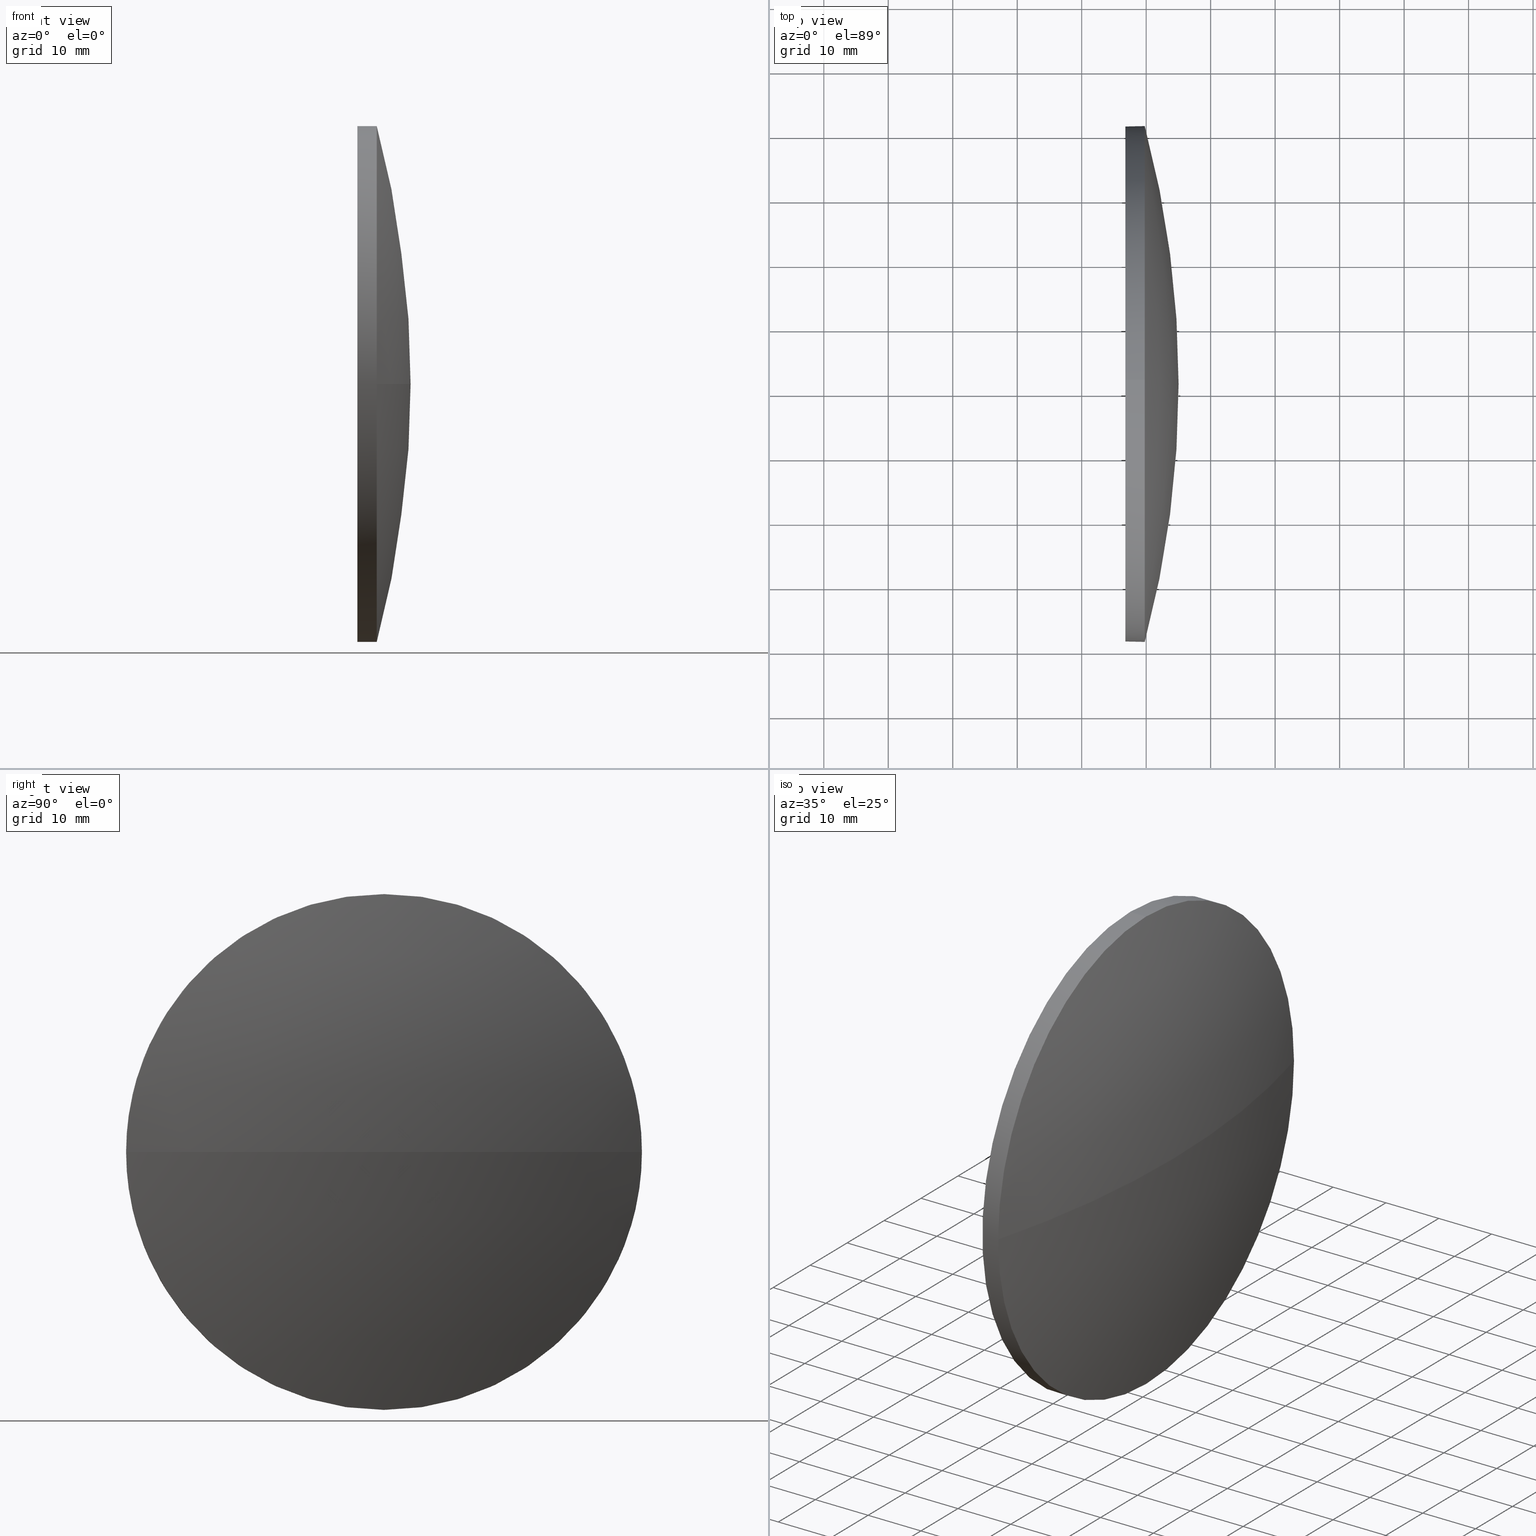
[diagram: canonical four-view strip — front | top / right | iso, engineering-drawing reading convention]
A machine part, canonical four-view strip (front | top / right | iso — engineering-drawing reading convention). The complete STEP part file that produces these views, byte-faithful:
ISO-10303-21;
HEADER;
FILE_DESCRIPTION (( 'STEP AP214' ),
    '1' );
FILE_NAME ('100079.STEP',
    '2019-05-10T02:18:41',
    ( '' ),
    ( '' ),
    'SwSTEP 2.0',
    'SolidWorks 2016',
    '' );
FILE_SCHEMA (( 'AUTOMOTIVE_DESIGN' ));
ENDSEC;

DATA;
#1 = CARTESIAN_POINT ( 'NONE',  ( 786.7768331134177500, 121.1916296255188900, 0.0000000000000000000 ) ) ;
#2 = DIRECTION ( 'NONE',  ( 0.0000000000000000000, 0.0000000000000000000, 1.000000000000000000 ) ) ;
#3 = DIRECTION ( 'NONE',  ( 0.0000000000000000000, 0.0000000000000000000, -1.000000000000000000 ) ) ;
#4 = DIRECTION ( 'NONE',  ( -1.000000000000000000, -0.0000000000000000000, -0.0000000000000000000 ) ) ;
#5 = UNCERTAINTY_MEASURE_WITH_UNIT (LENGTH_MEASURE( 1.000000000000000100E-005 ), #62, 'distance_accuracy_value', 'NONE');
#6 =( NAMED_UNIT ( * ) SI_UNIT ( $, .STERADIAN. ) SOLID_ANGLE_UNIT ( ) );
#7 = DIRECTION ( 'NONE',  ( -1.000000000000000000, -0.0000000000000000000, -0.0000000000000000000 ) ) ;
#8 = SURFACE_SIDE_STYLE ('',( #97 ) ) ;
#9 = EDGE_LOOP ( 'NONE', ( #90, #110, #78, #120 ) ) ;
#10 = DIRECTION ( 'NONE',  ( 0.0000000000000000000, 0.0000000000000000000, -1.000000000000000000 ) ) ;
#11 = PRESENTATION_LAYER_ASSIGNMENT (  '', '', ( #176 ) ) ;
#12 =( LENGTH_UNIT ( ) NAMED_UNIT ( * ) SI_UNIT ( .MILLI., .METRE. ) );
#13 = MECHANICAL_DESIGN_GEOMETRIC_PRESENTATION_REPRESENTATION (  '', ( #176 ), #145 ) ;
#14 = PRODUCT_RELATED_PRODUCT_CATEGORY ( 'part', '', ( #96 ) ) ;
#15 = MECHANICAL_DESIGN_GEOMETRIC_PRESENTATION_REPRESENTATION (  '', ( #69 ), #100 ) ;
#16 = DIRECTION ( 'NONE',  ( -1.000000000000000000, -0.0000000000000000000, -0.0000000000000000000 ) ) ;
#17 = VERTEX_POINT ( 'NONE', #174 ) ;
#18 = SURFACE_STYLE_FILL_AREA ( #148 ) ;
#19 = CARTESIAN_POINT ( 'NONE',  ( 767.9518554358446600, 121.1916296255188900, 0.0000000000000000000 ) ) ;
#20 = VERTEX_POINT ( 'NONE', #88 ) ;
#21 = DIRECTION ( 'NONE',  ( 0.0000000000000000000, 0.0000000000000000000, 1.000000000000000000 ) ) ;
#22 = APPLICATION_CONTEXT ( 'automotive_design' ) ;
#23 = ADVANCED_FACE ( 'NONE', ( #26 ), #167, .T. ) ;
#24 = EDGE_CURVE ( 'NONE', #66, #20, #53, .T. ) ;
#25 = PRODUCT_CONTEXT ( 'NONE', #136, 'mechanical' ) ;
#26 = FACE_OUTER_BOUND ( 'NONE', #158, .T. ) ;
#27 = PRESENTATION_STYLE_ASSIGNMENT (( #147 ) ) ;
#28 = ORIENTED_EDGE ( 'NONE', *, *, #159, .T. ) ;
#29 = EDGE_CURVE ( 'NONE', #35, #66, #163, .T. ) ;
#30 = CIRCLE ( 'NONE', #183, 155.0007543462769200 ) ;
#31 = ORIENTED_EDGE ( 'NONE', *, *, #32, .T. ) ;
#32 = EDGE_CURVE ( 'NONE', #116, #20, #99, .T. ) ;
#33 = DIRECTION ( 'NONE',  ( -1.000000000000000000, -0.0000000000000000000, -0.0000000000000000000 ) ) ;
#34 = DIRECTION ( 'NONE',  ( 0.0000000000000000000, 0.0000000000000000000, 1.000000000000000000 ) ) ;
#35 = VERTEX_POINT ( 'NONE', #143 ) ;
#36 = UNCERTAINTY_MEASURE_WITH_UNIT (LENGTH_MEASURE( 1.000000000000000100E-005 ), #12, 'distance_accuracy_value', 'NONE');
#37 = AXIS2_PLACEMENT_3D ( 'NONE', #65, #48, #51 ) ;
#38 = ORIENTED_EDGE ( 'NONE', *, *, #166, .T. ) ;
#39 = AXIS2_PLACEMENT_3D ( 'NONE', #19, #4, #144 ) ;
#40 = EDGE_LOOP ( 'NONE', ( #170, #101, #152, #45, #118 ) ) ;
#41 = FACE_OUTER_BOUND ( 'NONE', #9, .T. ) ;
#42 = SURFACE_SIDE_STYLE ('',( #18 ) ) ;
#43 = DIRECTION ( 'NONE',  ( 0.0000000000000000000, 0.0000000000000000000, 1.000000000000000000 ) ) ;
#44 = DIRECTION ( 'NONE',  ( -1.000000000000000000, -0.0000000000000000000, -0.0000000000000000000 ) ) ;
#45 = ORIENTED_EDGE ( 'NONE', *, *, #24, .T. ) ;
#46 = DIRECTION ( 'NONE',  ( 0.0000000000000000000, 0.0000000000000000000, 1.000000000000000000 ) ) ;
#47 = AXIS2_PLACEMENT_3D ( 'NONE', #117, #10, #108 ) ;
#48 = DIRECTION ( 'NONE',  ( 0.0000000000000000000, 0.0000000000000000000, 1.000000000000000000 ) ) ;
#49 = ADVANCED_FACE ( 'NONE', ( #126 ), #58, .F. ) ;
#50 = AXIS2_PLACEMENT_3D ( 'NONE', #173, #87, #3 ) ;
#51 = DIRECTION ( 'NONE',  ( 1.000000000000000000, 0.0000000000000000000, 0.0000000000000000000 ) ) ;
#52 = PRESENTATION_STYLE_ASSIGNMENT (( #132 ) ) ;
#53 = LINE ( 'NONE', #128, #137 ) ;
#54 = FACE_OUTER_BOUND ( 'NONE', #142, .T. ) ;
#55 = AXIS2_PLACEMENT_3D ( 'NONE', #135, #133, #34 ) ;
#56 = CARTESIAN_POINT ( 'NONE',  ( 789.7768331134177500, 121.1916296255188900, 0.0000000000000000000 ) ) ;
#57 = VERTEX_POINT ( 'NONE', #127 ) ;
#58 = PLANE ( 'NONE',  #50 ) ;
#59 = DIRECTION ( 'NONE',  ( 0.0000000000000000000, 0.0000000000000000000, 1.000000000000000000 ) ) ;
#60 = DIRECTION ( 'NONE',  ( 0.0000000000000000000, -1.224646799147353200E-016, 1.000000000000000000 ) ) ;
#61 = CARTESIAN_POINT ( 'NONE',  ( 786.7768331134177500, 121.1916296255188900, -40.00000000000000700 ) ) ;
#62 =( LENGTH_UNIT ( ) NAMED_UNIT ( * ) SI_UNIT ( .MILLI., .METRE. ) );
#63 =( NAMED_UNIT ( * ) SI_UNIT ( $, .STERADIAN. ) SOLID_ANGLE_UNIT ( ) );
#64 =( NAMED_UNIT ( * ) PLANE_ANGLE_UNIT ( ) SI_UNIT ( $, .RADIAN. ) );
#65 = CARTESIAN_POINT ( 'NONE',  ( 0.0000000000000000000, 0.0000000000000000000, 0.0000000000000000000 ) ) ;
#66 = VERTEX_POINT ( 'NONE', #162 ) ;
#67 = COLOUR_RGB ( '',1.000000000000000000, 1.000000000000000000, 1.000000000000000000 ) ;
#68 = CLOSED_SHELL ( 'NONE', ( #23, #79, #71, #129, #49 ) ) ;
#69 = STYLED_ITEM ( 'NONE', ( #52 ), #70 ) ;
#70 = MANIFOLD_SOLID_BREP ( '��ת1', #68 ) ;
#71 = ADVANCED_FACE ( 'NONE', ( #41 ), #95, .T. ) ;
#72 = SHAPE_DEFINITION_REPRESENTATION ( #154, #185 ) ;
#73 = CARTESIAN_POINT ( 'NONE',  ( 789.7768331134177500, 121.1916296255188900, 0.0000000000000000000 ) ) ;
#74 = UNCERTAINTY_MEASURE_WITH_UNIT (LENGTH_MEASURE( 1.000000000000000100E-005 ), #175, 'distance_accuracy_value', 'NONE');
#75 = CARTESIAN_POINT ( 'NONE',  ( 640.0262610012722500, 121.1916296255189100, 0.0000000000000000000 ) ) ;
#76 = DIRECTION ( 'NONE',  ( -1.000000000000000000, -0.0000000000000000000, -0.0000000000000000000 ) ) ;
#77 = DIRECTION ( 'NONE',  ( 0.0000000000000000000, -1.000000000000000000, 0.0000000000000000000 ) ) ;
#78 = ORIENTED_EDGE ( 'NONE', *, *, #155, .F. ) ;
#79 = ADVANCED_FACE ( 'NONE', ( #54 ), #184, .T. ) ;
#80 = CARTESIAN_POINT ( 'NONE',  ( 767.9518554358446600, 121.1916296255188900, -40.00000000000000700 ) ) ;
#81 = PRESENTATION_LAYER_ASSIGNMENT (  '', '', ( #69 ) ) ;
#82 = VECTOR ( 'NONE', #89, 1000.000000000000000 ) ;
#83 =( GEOMETRIC_REPRESENTATION_CONTEXT ( 3 ) GLOBAL_UNCERTAINTY_ASSIGNED_CONTEXT ( ( #5 ) ) GLOBAL_UNIT_ASSIGNED_CONTEXT ( ( #62, #177, #92 ) ) REPRESENTATION_CONTEXT ( 'NONE', 'WORKASPACE' ) );
#84 = PRODUCT_DEFINITION_CONTEXT ( 'detailed design', #22, 'design' ) ;
#85 = ORIENTED_EDGE ( 'NONE', *, *, #24, .F. ) ;
#86 = DIRECTION ( 'NONE',  ( 0.0000000000000000000, 0.0000000000000000000, 1.000000000000000000 ) ) ;
#87 = DIRECTION ( 'NONE',  ( 1.000000000000000000, 0.0000000000000000000, 0.0000000000000000000 ) ) ;
#88 = CARTESIAN_POINT ( 'NONE',  ( 786.7768331134177500, 121.1916296255188900, 40.00000000000000700 ) ) ;
#89 = DIRECTION ( 'NONE',  ( -1.000000000000000000, -0.0000000000000000000, -0.0000000000000000000 ) ) ;
#90 = ORIENTED_EDGE ( 'NONE', *, *, #121, .F. ) ;
#91 =( NAMED_UNIT ( * ) PLANE_ANGLE_UNIT ( ) SI_UNIT ( $, .RADIAN. ) );
#92 =( NAMED_UNIT ( * ) SI_UNIT ( $, .STERADIAN. ) SOLID_ANGLE_UNIT ( ) );
#93 = CARTESIAN_POINT ( 'NONE',  ( 789.7768331134177500, 121.1916296255188900, 0.0000000000000000000 ) ) ;
#94 = PRODUCT_DEFINITION_FORMATION_WITH_SPECIFIED_SOURCE ( '�κ�', '', #96, .NOT_KNOWN. ) ;
#95 = SPHERICAL_SURFACE ( 'NONE', #164, 155.0007543462769200 ) ;
#96 = PRODUCT ( '100079', '100079', '', ( #25 ) ) ;
#97 = SURFACE_STYLE_FILL_AREA ( #107 ) ;
#98 = CYLINDRICAL_SURFACE ( 'NONE', #114, 40.00000000000000700 ) ;
#99 = CIRCLE ( 'NONE', #182, 40.00000000000000700 ) ;
#100 =( GEOMETRIC_REPRESENTATION_CONTEXT ( 3 ) GLOBAL_UNCERTAINTY_ASSIGNED_CONTEXT ( ( #74 ) ) GLOBAL_UNIT_ASSIGNED_CONTEXT ( ( #175, #91, #63 ) ) REPRESENTATION_CONTEXT ( 'NONE', 'WORKASPACE' ) );
#101 = ORIENTED_EDGE ( 'NONE', *, *, #155, .T. ) ;
#102 = CARTESIAN_POINT ( 'NONE',  ( 640.0262610012722500, 121.1916296255189100, 0.0000000000000000000 ) ) ;
#103 = CIRCLE ( 'NONE', #55, 40.00000000000000700 ) ;
#104 = FILL_AREA_STYLE_COLOUR ( '', #67 ) ;
#105 = CARTESIAN_POINT ( 'NONE',  ( 789.7768331134177500, 121.1916296255188900, -40.00000000000000700 ) ) ;
#106 = CIRCLE ( 'NONE', #112, 40.00000000000000700 ) ;
#107 = FILL_AREA_STYLE ('',( #160 ) ) ;
#108 = DIRECTION ( 'NONE',  ( -1.000000000000000000, 0.0000000000000000000, 0.0000000000000000000 ) ) ;
#109 = DIRECTION ( 'NONE',  ( 0.0000000000000000000, 0.0000000000000000000, 1.000000000000000000 ) ) ;
#110 = ORIENTED_EDGE ( 'NONE', *, *, #169, .T. ) ;
#111 = DIRECTION ( 'NONE',  ( 0.0000000000000000000, -1.000000000000000000, -1.224646799147353200E-016 ) ) ;
#112 = AXIS2_PLACEMENT_3D ( 'NONE', #130, #33, #21 ) ;
#113 = CIRCLE ( 'NONE', #139, 40.00000000000000700 ) ;
#114 = AXIS2_PLACEMENT_3D ( 'NONE', #161, #44, #59 ) ;
#115 = EDGE_CURVE ( 'NONE', #20, #116, #106, .T. ) ;
#116 = VERTEX_POINT ( 'NONE', #61 ) ;
#117 = CARTESIAN_POINT ( 'NONE',  ( 640.0262610012722500, 121.1916296255189100, 0.0000000000000000000 ) ) ;
#118 = ORIENTED_EDGE ( 'NONE', *, *, #32, .F. ) ;
#119 = APPLICATION_PROTOCOL_DEFINITION ( 'draft international standard', 'automotive_design', 1998, #22 ) ;
#120 = ORIENTED_EDGE ( 'NONE', *, *, #179, .F. ) ;
#121 = EDGE_CURVE ( 'NONE', #17, #57, #30, .T. ) ;
#122 = ORIENTED_EDGE ( 'NONE', *, *, #166, .F. ) ;
#123 = COLOUR_RGB ( '',1.000000000000000000, 1.000000000000000000, 1.000000000000000000 ) ;
#124 = ORIENTED_EDGE ( 'NONE', *, *, #115, .F. ) ;
#125 = CIRCLE ( 'NONE', #157, 40.00000000000000700 ) ;
#126 = FACE_OUTER_BOUND ( 'NONE', #140, .T. ) ;
#127 = CARTESIAN_POINT ( 'NONE',  ( 789.7768331134177500, 161.1916296255188600, 4.898587196589406700E-015 ) ) ;
#128 = CARTESIAN_POINT ( 'NONE',  ( 767.9518554358446600, 121.1916296255188900, 40.00000000000000700 ) ) ;
#129 = ADVANCED_FACE ( 'NONE', ( #168 ), #98, .T. ) ;
#130 = CARTESIAN_POINT ( 'NONE',  ( 786.7768331134177500, 121.1916296255188900, 0.0000000000000000000 ) ) ;
#131 = ORIENTED_EDGE ( 'NONE', *, *, #121, .T. ) ;
#132 = SURFACE_STYLE_USAGE ( .BOTH. , #8 ) ;
#133 = DIRECTION ( 'NONE',  ( -1.000000000000000000, -0.0000000000000000000, -0.0000000000000000000 ) ) ;
#134 = DIRECTION ( 'NONE',  ( 0.0000000000000000000, -1.000000000000000000, 0.0000000000000000000 ) ) ;
#135 = CARTESIAN_POINT ( 'NONE',  ( 789.7768331134177500, 121.1916296255188900, 0.0000000000000000000 ) ) ;
#136 = APPLICATION_CONTEXT ( 'automotive_design' ) ;
#137 = VECTOR ( 'NONE', #146, 1000.000000000000000 ) ;
#138 = CARTESIAN_POINT ( 'NONE',  ( 640.0262610012722500, 121.1916296255189100, 0.0000000000000000000 ) ) ;
#139 = AXIS2_PLACEMENT_3D ( 'NONE', #93, #76, #109 ) ;
#140 = EDGE_LOOP ( 'NONE', ( #180, #31 ) ) ;
#141 = CIRCLE ( 'NONE', #47, 155.0007543462769200 ) ;
#142 = EDGE_LOOP ( 'NONE', ( #156, #131, #122, #165 ) ) ;
#143 = CARTESIAN_POINT ( 'NONE',  ( 789.7768331134177500, 81.19162962551892800, 0.0000000000000000000 ) ) ;
#144 = DIRECTION ( 'NONE',  ( 0.0000000000000000000, 0.0000000000000000000, 1.000000000000000000 ) ) ;
#145 =( GEOMETRIC_REPRESENTATION_CONTEXT ( 3 ) GLOBAL_UNCERTAINTY_ASSIGNED_CONTEXT ( ( #36 ) ) GLOBAL_UNIT_ASSIGNED_CONTEXT ( ( #12, #64, #6 ) ) REPRESENTATION_CONTEXT ( 'NONE', 'WORKASPACE' ) );
#146 = DIRECTION ( 'NONE',  ( -1.000000000000000000, -0.0000000000000000000, -0.0000000000000000000 ) ) ;
#147 = SURFACE_STYLE_USAGE ( .BOTH. , #42 ) ;
#148 = FILL_AREA_STYLE ('',( #104 ) ) ;
#149 = ORIENTED_EDGE ( 'NONE', *, *, #179, .T. ) ;
#150 = APPLICATION_PROTOCOL_DEFINITION ( 'draft international standard', 'automotive_design', 1998, #136 ) ;
#151 = AXIS2_PLACEMENT_3D ( 'NONE', #56, #171, #86 ) ;
#152 = ORIENTED_EDGE ( 'NONE', *, *, #29, .T. ) ;
#153 = LINE ( 'NONE', #80, #82 ) ;
#154 = PRODUCT_DEFINITION_SHAPE ( 'NONE', 'NONE',  #181 ) ;
#155 = EDGE_CURVE ( 'NONE', #186, #35, #125, .T. ) ;
#156 = ORIENTED_EDGE ( 'NONE', *, *, #169, .F. ) ;
#157 = AXIS2_PLACEMENT_3D ( 'NONE', #73, #7, #178 ) ;
#158 = EDGE_LOOP ( 'NONE', ( #149, #28, #124, #85, #38 ) ) ;
#159 = EDGE_CURVE ( 'NONE', #186, #116, #153, .T. ) ;
#160 = FILL_AREA_STYLE_COLOUR ( '', #123 ) ;
#161 = CARTESIAN_POINT ( 'NONE',  ( 767.9518554358446600, 121.1916296255188900, 0.0000000000000000000 ) ) ;
#162 = CARTESIAN_POINT ( 'NONE',  ( 789.7768331134177500, 121.1916296255188900, 40.00000000000000700 ) ) ;
#163 = CIRCLE ( 'NONE', #151, 40.00000000000000700 ) ;
#164 = AXIS2_PLACEMENT_3D ( 'NONE', #102, #46, #134 ) ;
#165 = ORIENTED_EDGE ( 'NONE', *, *, #29, .F. ) ;
#166 = EDGE_CURVE ( 'NONE', #66, #57, #113, .T. ) ;
#167 = CYLINDRICAL_SURFACE ( 'NONE', #39, 40.00000000000000700 ) ;
#168 = FACE_OUTER_BOUND ( 'NONE', #40, .T. ) ;
#169 = EDGE_CURVE ( 'NONE', #17, #35, #141, .T. ) ;
#170 = ORIENTED_EDGE ( 'NONE', *, *, #159, .F. ) ;
#171 = DIRECTION ( 'NONE',  ( -1.000000000000000000, -0.0000000000000000000, -0.0000000000000000000 ) ) ;
#172 = AXIS2_PLACEMENT_3D ( 'NONE', #75, #43, #77 ) ;
#173 = CARTESIAN_POINT ( 'NONE',  ( 786.7768331134177500, 121.1916296255188900, 0.0000000000000000000 ) ) ;
#174 = CARTESIAN_POINT ( 'NONE',  ( 795.0270153475492000, 121.1916296255189000, 0.0000000000000000000 ) ) ;
#175 =( LENGTH_UNIT ( ) NAMED_UNIT ( * ) SI_UNIT ( .MILLI., .METRE. ) );
#176 = STYLED_ITEM ( 'NONE', ( #27 ), #185 ) ;
#177 =( NAMED_UNIT ( * ) PLANE_ANGLE_UNIT ( ) SI_UNIT ( $, .RADIAN. ) );
#178 = DIRECTION ( 'NONE',  ( 0.0000000000000000000, 0.0000000000000000000, 1.000000000000000000 ) ) ;
#179 = EDGE_CURVE ( 'NONE', #57, #186, #103, .T. ) ;
#180 = ORIENTED_EDGE ( 'NONE', *, *, #115, .T. ) ;
#181 = PRODUCT_DEFINITION ( 'δ֪', '', #94, #84 ) ;
#182 = AXIS2_PLACEMENT_3D ( 'NONE', #1, #16, #2 ) ;
#183 = AXIS2_PLACEMENT_3D ( 'NONE', #138, #60, #111 ) ;
#184 = SPHERICAL_SURFACE ( 'NONE', #172, 155.0007543462769200 ) ;
#185 = ADVANCED_BREP_SHAPE_REPRESENTATION ( '100079', ( #70, #37 ), #83 ) ;
#186 = VERTEX_POINT ( 'NONE', #105 ) ;
ENDSEC;
END-ISO-10303-21;
